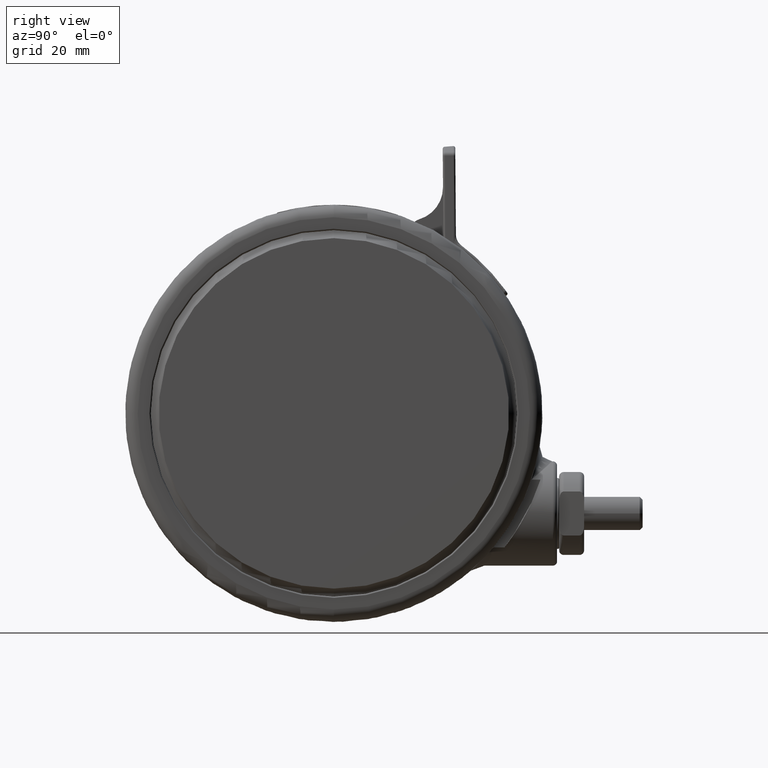
[diagram: clean part render]
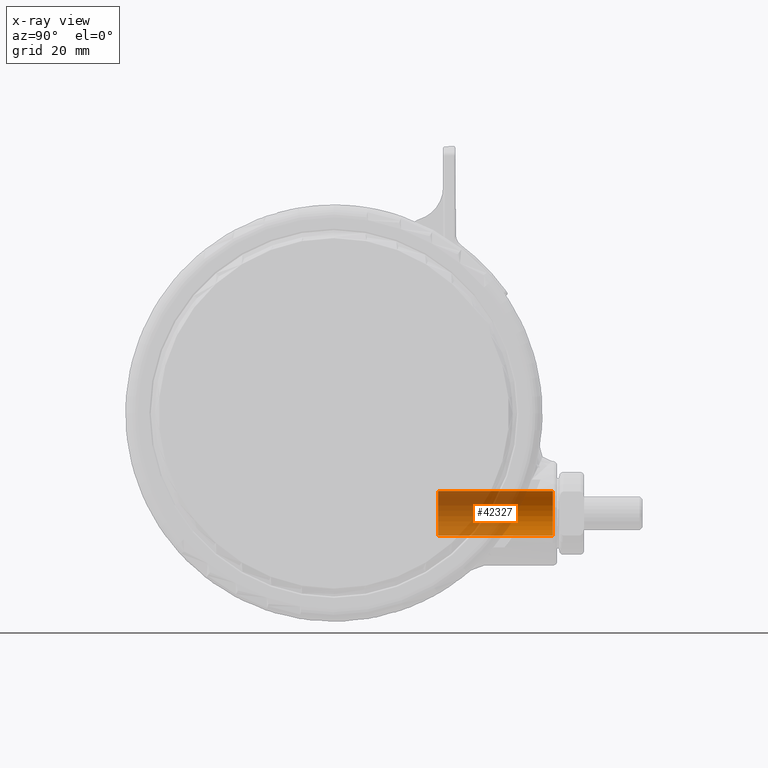
[diagram: x-ray — body ghosted, one internal face saturated and labeled with its STEP entity id]
A machine part, right view, then the same camera in x-ray: the body is ghosted and one INTERNAL B-rep face — a face not visible from any outside direction — is saturated and labeled: STEP entity #42327.
In plain terms, the highlighted cylindrical surface (edge-blend (fillet) strip) has radius 5.35 mm, axis along (0, 1, 0).
Its self-contained STEP definition (entity closure, byte-faithful):
#798 = VERTEX_POINT ( 'NONE', #46016 ) ;
#1177 = VERTEX_POINT ( 'NONE', #33504 ) ;
#1768 = CARTESIAN_POINT ( 'NONE',  ( -23.99999999999999300, -52.50000000000000700, -24.29999999999995100 ) ) ;
#2757 = LINE ( 'NONE', #36986, #12792 ) ;
#3879 = ORIENTED_EDGE ( 'NONE', *, *, #14261, .F. ) ;
#5549 = DIRECTION ( 'NONE',  ( 1.000000000000000000, 0.0000000000000000000, 0.0000000000000000000 ) ) ;
#6379 = EDGE_CURVE ( 'NONE', #38994, #25712, #42626, .T. ) ;
#7370 = VECTOR ( 'NONE', #16137, 1000.000000000000000 ) ;
#7974 = AXIS2_PLACEMENT_3D ( 'NONE', #44728, #22139, #48530 ) ;
#11155 = FACE_OUTER_BOUND ( 'NONE', #20617, .T. ) ;
#12645 = EDGE_CURVE ( 'NONE', #1177, #25712, #38699, .T. ) ;
#12792 = VECTOR ( 'NONE', #44535, 1000.000000000000000 ) ;
#13807 = CARTESIAN_POINT ( 'NONE',  ( -23.99999999999999300, -61.36639215513579900, -24.29999999999995100 ) ) ;
#14261 = EDGE_CURVE ( 'NONE', #798, #1177, #48153, .T. ) ;
#16137 = DIRECTION ( 'NONE',  ( 2.360897160001558300E-016, -1.000000000000000000, 6.688773330916236600E-017 ) ) ;
#17625 = CARTESIAN_POINT ( 'NONE',  ( -29.34999999999999400, -52.50000000000000700, -24.29999999999995500 ) ) ;
#18173 = AXIS2_PLACEMENT_3D ( 'NONE', #1768, #28204, #5549 ) ;
#20050 = CYLINDRICAL_SURFACE ( 'NONE', #25902, 5.350000000000000500 ) ;
#20617 = EDGE_LOOP ( 'NONE', ( #3879, #37812, #44367, #48845 ) ) ;
#21223 = DIRECTION ( 'NONE',  ( 1.000000000000000000, 0.0000000000000000000, 0.0000000000000000000 ) ) ;
#22139 = DIRECTION ( 'NONE',  ( 2.360897160001558300E-016, -1.000000000000000000, 6.688773330916236600E-017 ) ) ;
#24334 = CARTESIAN_POINT ( 'NONE',  ( -18.64999999999999100, -52.50000000000000700, -24.29999999999995100 ) ) ;
#25712 = VERTEX_POINT ( 'NONE', #24334 ) ;
#25902 = AXIS2_PLACEMENT_3D ( 'NONE', #13807, #47605, #21223 ) ;
#28204 = DIRECTION ( 'NONE',  ( 2.360897160001558300E-016, -1.000000000000000000, 6.688773330916236600E-017 ) ) ;
#33504 = CARTESIAN_POINT ( 'NONE',  ( -18.65000000000000200, -25.00000000000000700, -24.29999999999995100 ) ) ;
#34988 = EDGE_CURVE ( 'NONE', #798, #38994, #2757, .T. ) ;
#35924 = CARTESIAN_POINT ( 'NONE',  ( -18.64999999999999100, -61.36639215513579900, -24.29999999999995100 ) ) ;
#36986 = CARTESIAN_POINT ( 'NONE',  ( -29.34999999999999400, -61.36639215513579900, -24.29999999999995100 ) ) ;
#37812 = ORIENTED_EDGE ( 'NONE', *, *, #34988, .T. ) ;
#38699 = LINE ( 'NONE', #35924, #7370 ) ;
#38994 = VERTEX_POINT ( 'NONE', #17625 ) ;
#42327 = ADVANCED_FACE ( 'NONE', ( #11155 ), #20050, .F. ) ;
#42626 = CIRCLE ( 'NONE', #18173, 5.350000000000000500 ) ;
#44367 = ORIENTED_EDGE ( 'NONE', *, *, #6379, .T. ) ;
#44535 = DIRECTION ( 'NONE',  ( 2.360897160001558300E-016, -1.000000000000000000, 6.688773330916236600E-017 ) ) ;
#44728 = CARTESIAN_POINT ( 'NONE',  ( -23.99999999999999600, -25.00000000000000700, -24.29999999999995100 ) ) ;
#46016 = CARTESIAN_POINT ( 'NONE',  ( -29.34999999999999100, -25.00000000000000700, -24.29999999999995100 ) ) ;
#47605 = DIRECTION ( 'NONE',  ( 2.360897160001558300E-016, -1.000000000000000000, 6.688773330916236600E-017 ) ) ;
#48153 = CIRCLE ( 'NONE', #7974, 5.350000000000000500 ) ;
#48530 = DIRECTION ( 'NONE',  ( 1.000000000000000000, 0.0000000000000000000, 0.0000000000000000000 ) ) ;
#48845 = ORIENTED_EDGE ( 'NONE', *, *, #12645, .F. ) ;